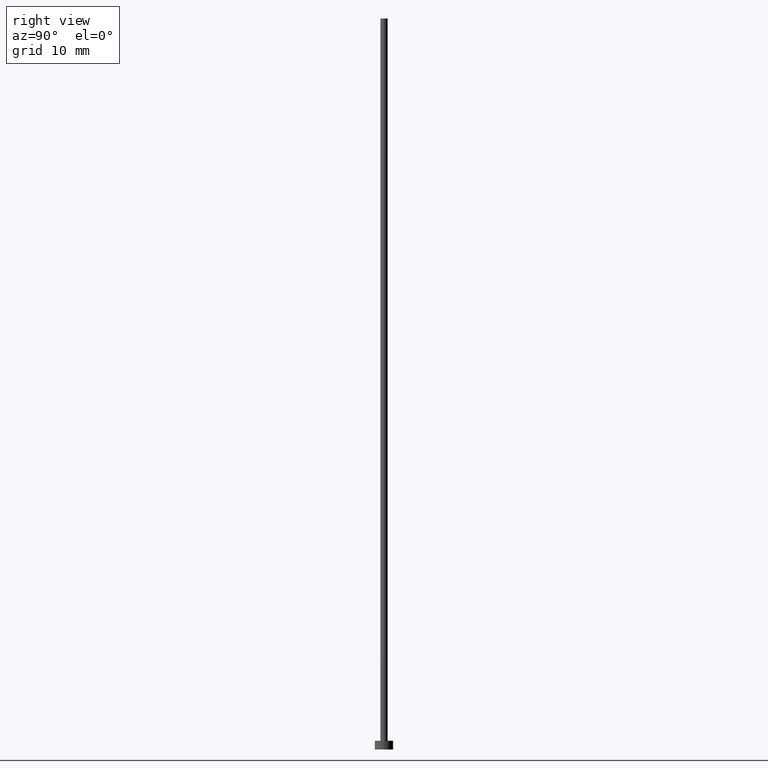
[diagram: clean part render]
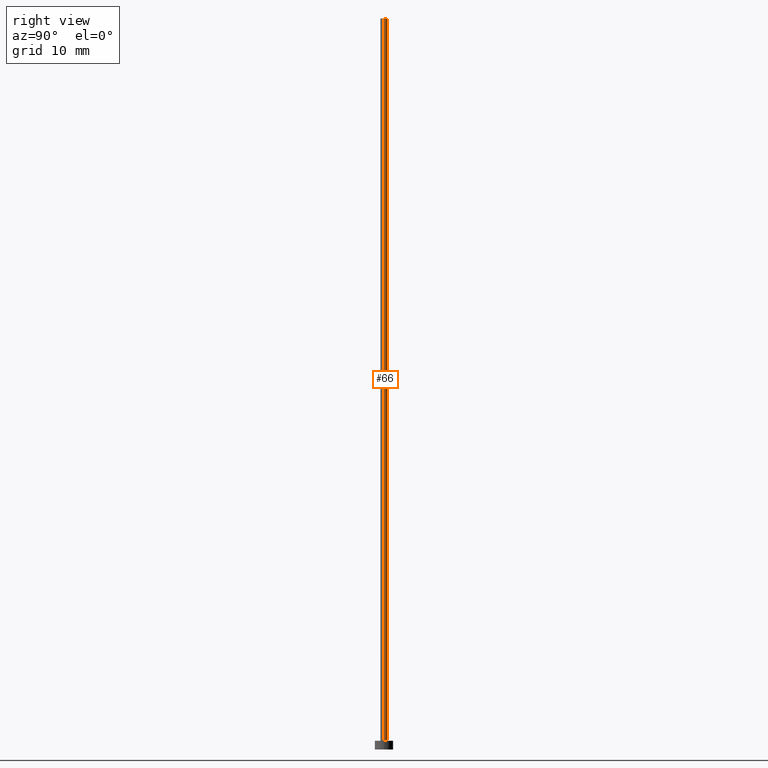
[diagram: same view with one face highlighted and labeled with its STEP entity id]
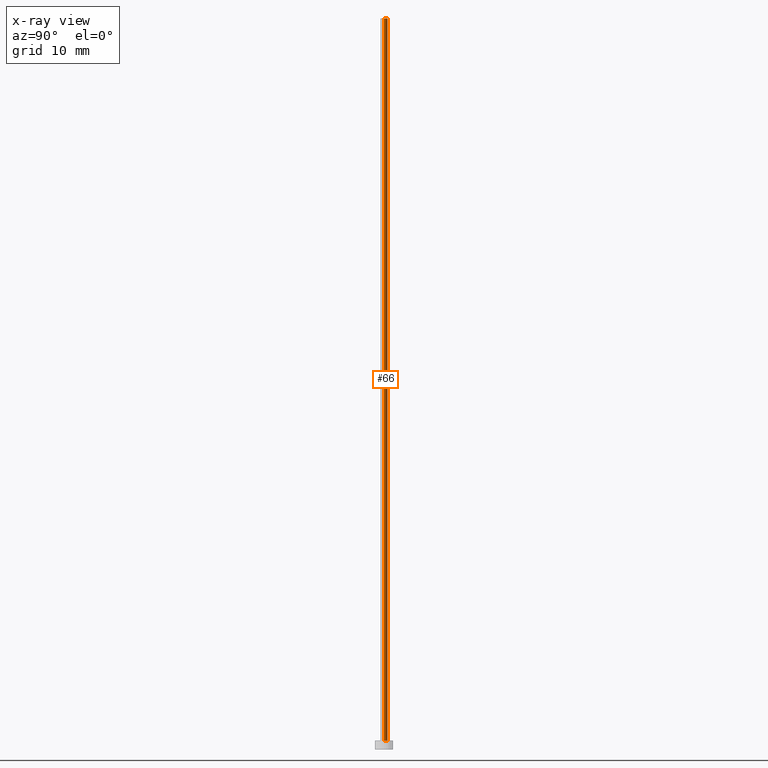
[diagram: x-ray of the same camera — body ghosted, the highlighted face saturated]
A machine part, right view. The second image highlights one B-rep face of the part: STEP entity #66.
The next image is the same camera in x-ray: the body ghosted, the highlighted face saturated — about 0% of this face is hidden behind the body in this view.
In plain terms, the highlighted cylindrical surface (edge-blend (fillet) strip) has radius 0.5 mm, axis along (-0, -0, -1).
Its self-contained STEP definition (entity closure, byte-faithful):
#15 = VECTOR ( 'NONE', #44, 1000.000000000000000 ) ;
#19 = LINE ( 'NONE', #37, #33 ) ;
#28 = DIRECTION ( 'NONE',  ( 0.000000000000000000, 0.000000000000000000, 1.000000000000000000 ) ) ;
#33 = VECTOR ( 'NONE', #156, 1000.000000000000000 ) ;
#37 = CARTESIAN_POINT ( 'NONE',  ( 0.5000000000000000000, 6.123233995736766036E-17, 100.0000000000000000 ) ) ;
#39 = CYLINDRICAL_SURFACE ( 'NONE', #237, 0.5000000000000000000 ) ;
#41 = DIRECTION ( 'NONE',  ( -1.000000000000000000, 0.000000000000000000, 0.000000000000000000 ) ) ;
#44 = DIRECTION ( 'NONE',  ( -0.000000000000000000, -0.000000000000000000, -1.000000000000000000 ) ) ;
#57 = CARTESIAN_POINT ( 'NONE',  ( 0.000000000000000000, 0.000000000000000000, 100.0000000000000000 ) ) ;
#62 = EDGE_CURVE ( 'NONE', #95, #173, #19, .T. ) ;
#63 = ORIENTED_EDGE ( 'NONE', *, *, #248, .F. ) ;
#64 = DIRECTION ( 'NONE',  ( 1.000000000000000000, 0.000000000000000000, 0.000000000000000000 ) ) ;
#66 = ADVANCED_FACE ( 'NONE', ( #155 ), #39, .T. ) ;
#69 = CARTESIAN_POINT ( 'NONE',  ( 0.000000000000000000, 0.000000000000000000, 100.0000000000000000 ) ) ;
#86 = CARTESIAN_POINT ( 'NONE',  ( -0.5000000000000000000, 0.000000000000000000, 100.0000000000000000 ) ) ;
#87 = CARTESIAN_POINT ( 'NONE',  ( 0.000000000000000000, 0.000000000000000000, 1.199999999999999956 ) ) ;
#88 = CARTESIAN_POINT ( 'NONE',  ( 0.5000000000000000000, 6.123233995736766036E-17, 1.199999999999999956 ) ) ;
#95 = VERTEX_POINT ( 'NONE', #117 ) ;
#117 = CARTESIAN_POINT ( 'NONE',  ( 0.5000000000000000000, 6.123233995736766036E-17, 100.0000000000000000 ) ) ;
#127 = CIRCLE ( 'NONE', #144, 0.5000000000000000000 ) ;
#133 = EDGE_CURVE ( 'NONE', #173, #251, #153, .T. ) ;
#134 = AXIS2_PLACEMENT_3D ( 'NONE', #87, #28, #163 ) ;
#144 = AXIS2_PLACEMENT_3D ( 'NONE', #69, #147, #64 ) ;
#147 = DIRECTION ( 'NONE',  ( 0.000000000000000000, 0.000000000000000000, 1.000000000000000000 ) ) ;
#153 = CIRCLE ( 'NONE', #134, 0.5000000000000000000 ) ;
#155 = FACE_OUTER_BOUND ( 'NONE', #235, .T. ) ;
#156 = DIRECTION ( 'NONE',  ( -0.000000000000000000, -0.000000000000000000, -1.000000000000000000 ) ) ;
#157 = ORIENTED_EDGE ( 'NONE', *, *, #62, .T. ) ;
#163 = DIRECTION ( 'NONE',  ( 1.000000000000000000, 0.000000000000000000, 0.000000000000000000 ) ) ;
#169 = LINE ( 'NONE', #239, #15 ) ;
#173 = VERTEX_POINT ( 'NONE', #88 ) ;
#194 = DIRECTION ( 'NONE',  ( -0.000000000000000000, -0.000000000000000000, -1.000000000000000000 ) ) ;
#213 = ORIENTED_EDGE ( 'NONE', *, *, #133, .T. ) ;
#219 = EDGE_CURVE ( 'NONE', #95, #254, #127, .T. ) ;
#221 = ORIENTED_EDGE ( 'NONE', *, *, #219, .F. ) ;
#235 = EDGE_LOOP ( 'NONE', ( #221, #157, #213, #63 ) ) ;
#237 = AXIS2_PLACEMENT_3D ( 'NONE', #57, #194, #41 ) ;
#239 = CARTESIAN_POINT ( 'NONE',  ( -0.5000000000000000000, 0.000000000000000000, 100.0000000000000000 ) ) ;
#240 = CARTESIAN_POINT ( 'NONE',  ( -0.5000000000000000000, 0.000000000000000000, 1.199999999999999956 ) ) ;
#248 = EDGE_CURVE ( 'NONE', #254, #251, #169, .T. ) ;
#251 = VERTEX_POINT ( 'NONE', #240 ) ;
#254 = VERTEX_POINT ( 'NONE', #86 ) ;